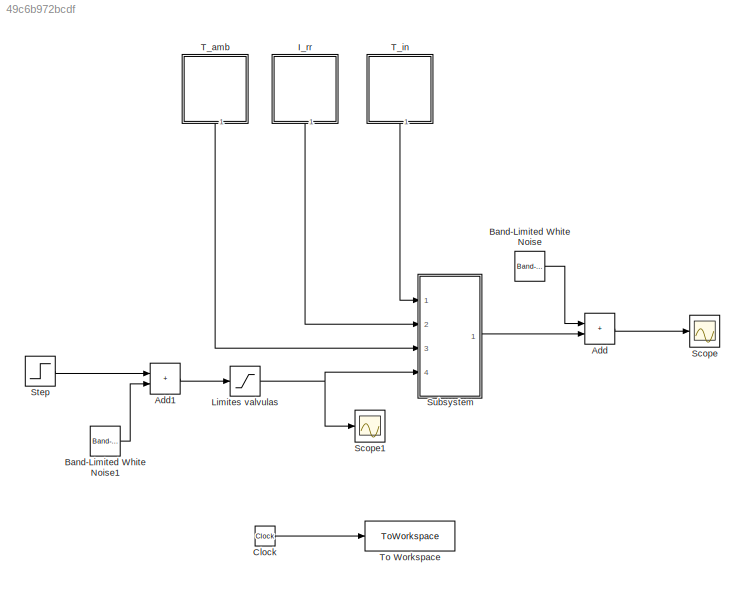
MODEL slx_49c6b972bcdf
KIND model
CONFIG AbsTol = auto
CONFIG EnableMultiTasking = off
CONFIG FixedStep = auto
CONFIG MaxStep = auto
CONFIG MinStep = auto
CONFIG RelTol = 1e-3
CONFIG SampleTimeConstraint = Unconstrained
CONFIG Solver = VariableStepAuto
CONFIG SolverName = VariableStepAuto
CONFIG StartTime = 0.0
CONFIG StopTime = 100
BLOCK [Sum] Add
  IconShape = rectangular
  Ports = [2, 1]
BLOCK [Sum] Add1
  IconShape = rectangular
  Ports = [2, 1]
BLOCK [Reference] Band-Limited White Noise  REF=simulink/Sources/Band-Limited
White Noise
  Ports = [0, 1]
  SourceBlock = simulink/Sources/Band-Limited\nWhite Noise
  SourceType = Band-Limited White Noise.
BLOCK [Reference] Band-Limited White Noise1  REF=simulink/Sources/Band-Limited
White Noise
  Ports = [0, 1]
  SourceBlock = simulink/Sources/Band-Limited\nWhite Noise
  SourceType = Band-Limited White Noise.
BLOCK [Clock] Clock
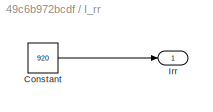
BLOCK [SubSystem] I_rr
  Ports = [0, 1]
BLOCK [Constant] I_rr/Constant
  Value = 920
BLOCK [Outport] I_rr/Irr
BLOCK [Saturate] Limites valvulas
  LowerLimit = 2
  UpperLimit = 12
BLOCK [Scope] Scope
  Floating = off
  NumInputPorts = 1
  Ports = [1]
  ScopeSpecificationString = Simulink.scopes.TimeScopeBlockCfg('CurrentConfiguration', extmgr.ConfigurationSet(extmgr.Configuration('Core','General UI',true),extmgr.Configuration('Core','Source UI',true),extmgr.Configuration('Sources','WiredSimulink',true),extmgr.Configuration('Visuals','Time Domain',true,'SerializedDisplays',{struct('MinYLimReal','229.8849','MaxYLimReal','531.08311','YLabelReal','','MinYLimMag','229.8849','M...<+1377ch>
BLOCK [Scope] Scope1
  Floating = off
  NumInputPorts = 1
  Ports = [1]
  ScopeSpecificationString = Simulink.scopes.TimeScopeBlockCfg('CurrentConfiguration', extmgr.ConfigurationSet(extmgr.Configuration('Core','General UI',true),extmgr.Configuration('Core','Source UI',true),extmgr.Configuration('Sources','WiredSimulink',true,'DataLoggingVariableName','ScopeData1'),extmgr.Configuration('Visuals','Time Domain',true,'SerializedDisplays',{struct('MinYLimReal','6.82922','MaxYLimReal','8.15653','YLabe...<+1417ch>
BLOCK [Step] Step
  After = 7
  Before = 8
  SampleTime = 0
  Time = 39
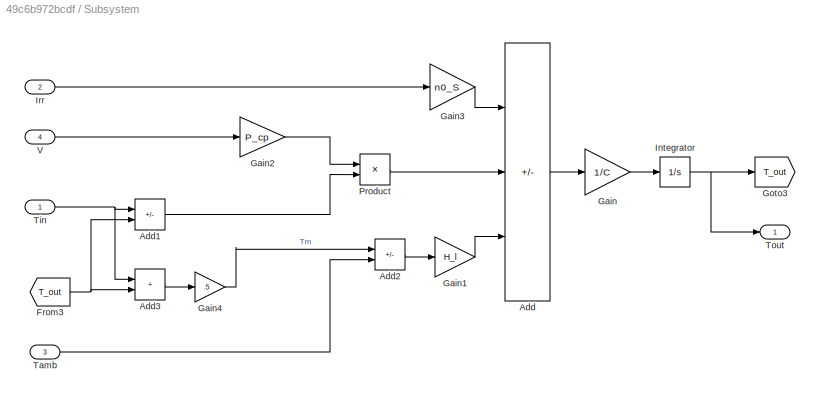
BLOCK [SubSystem] Subsystem
  Ports = [4, 1]
BLOCK [Sum] Subsystem/Add
  IconShape = rectangular
  Inputs = +--
  Ports = [3, 1]
BLOCK [Sum] Subsystem/Add1
  IconShape = rectangular
  Inputs = -+
  Ports = [2, 1]
BLOCK [Sum] Subsystem/Add2
  IconShape = rectangular
  Inputs = +-
  Ports = [2, 1]
BLOCK [Sum] Subsystem/Add3
  IconShape = rectangular
  Ports = [2, 1]
BLOCK [From] Subsystem/From3
  GotoTag = T_out
BLOCK [Gain] Subsystem/Gain
  Gain = 1/C
BLOCK [Gain] Subsystem/Gain1
  Gain = H_l
BLOCK [Gain] Subsystem/Gain2
  Gain = P_cp
BLOCK [Gain] Subsystem/Gain3
  Gain = n0_S
BLOCK [Gain] Subsystem/Gain4
  Gain = .5
BLOCK [Goto] Subsystem/Goto3
  GotoTag = T_out
BLOCK [Integrator] Subsystem/Integrator
  InitialCondition = Tinit
  Ports = [1, 1]
BLOCK [Inport] Subsystem/Irr
  Port = 2
BLOCK [Product] Subsystem/Product
  Ports = [2, 1]
BLOCK [Inport] Subsystem/Tamb
  Port = 3
BLOCK [Inport] Subsystem/Tin
BLOCK [Outport] Subsystem/Tout
BLOCK [Inport] Subsystem/V
  Port = 4
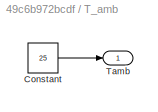
BLOCK [SubSystem] T_amb
  Ports = [0, 1]
BLOCK [Constant] T_amb/Constant
  Value = 25
BLOCK [Outport] T_amb/Tamb
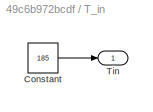
BLOCK [SubSystem] T_in
  Ports = [0, 1]
BLOCK [Constant] T_in/Constant
  Value = 185
BLOCK [Outport] T_in/Tin
BLOCK [ToWorkspace] To Workspace
  FixptAsFi = on
  MaxDataPoints = inf
  Ports = [1]
  SampleTime = -1
  VariableName = time
LINE Add1:1 -> Limites valvulas:1
LINE Add:1 -> Scope:1
LINE Band-Limited White Noise1:1 -> Add1:2
LINE Band-Limited White Noise:1 -> Add:1
LINE Clock:1 -> To Workspace:1
LINE I_rr/Constant:1 -> I_rr/Irr:1
LINE I_rr:1 -> Subsystem:2
NET Limites valvulas:1 -> Scope1:1, Subsystem:4
LINE Step:1 -> Add1:1
LINE Subsystem/Add1:1 -> Subsystem/Product:2
LINE Subsystem/Add2:1 -> Subsystem/Gain1:1
LINE Subsystem/Add3:1 -> Subsystem/Gain4:1
LINE Subsystem/Add:1 -> Subsystem/Gain:1
NET Subsystem/From3:1 -> Subsystem/Add1:2, Subsystem/Add3:2
LINE Subsystem/Gain1:1 -> Subsystem/Add:3
LINE Subsystem/Gain2:1 -> Subsystem/Product:1
LINE Subsystem/Gain3:1 -> Subsystem/Add:1
LINE Subsystem/Gain4:1 -> Subsystem/Add2:1
LINE Subsystem/Gain:1 -> Subsystem/Integrator:1
NET Subsystem/Integrator:1 -> Subsystem/Goto3:1, Subsystem/Tout:1
LINE Subsystem/Irr:1 -> Subsystem/Gain3:1
LINE Subsystem/Product:1 -> Subsystem/Add:2
LINE Subsystem/Tamb:1 -> Subsystem/Add2:2
NET Subsystem/Tin:1 -> Subsystem/Add1:1, Subsystem/Add3:1
LINE Subsystem/V:1 -> Subsystem/Gain2:1
LINE Subsystem:1 -> Add:2
LINE T_amb/Constant:1 -> T_amb/Tamb:1
LINE T_amb:1 -> Subsystem:3
LINE T_in/Constant:1 -> T_in/Tin:1
LINE T_in:1 -> Subsystem:1
note: NET lines group one-source signal fan-out (src -> all destinations, sorted); 1:1 wires keep LINE
